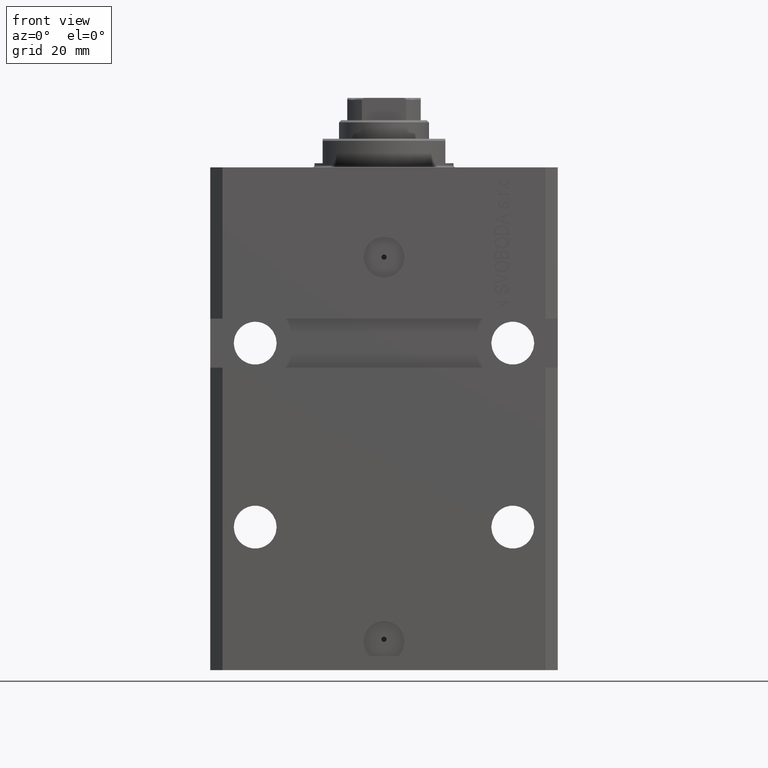
[diagram: clean part render]
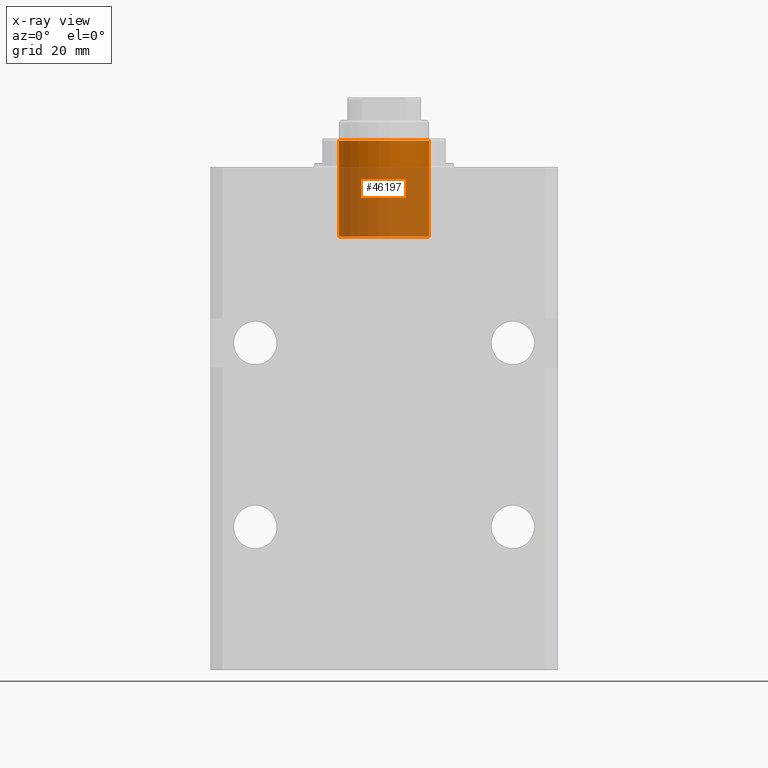
[diagram: x-ray — body ghosted, one internal face saturated and labeled with its STEP entity id]
A machine part, front view, then the same camera in x-ray: the body is ghosted and one INTERNAL B-rep face — a face not visible from any outside direction — is saturated and labeled: STEP entity #46197.
In plain terms, the highlighted cylindrical surface (partial cylindrical patch) has radius 11 mm, axis along (0, -0, 1).
Its self-contained STEP definition (entity closure, byte-faithful):
#448 = CARTESIAN_POINT ( 'NONE',  ( 0.000000000000000000, 0.000000000000000000, 17.00000000000000000 ) ) ;
#3566 = LINE ( 'NONE', #48332, #41298 ) ;
#4382 = FACE_OUTER_BOUND ( 'NONE', #35126, .T. ) ;
#5729 = CARTESIAN_POINT ( 'NONE',  ( 11.00000000000000000, 1.347111479062088405E-15, 17.00000000000000000 ) ) ;
#6456 = EDGE_CURVE ( 'NONE', #14594, #19586, #27695, .T. ) ;
#7753 = ORIENTED_EDGE ( 'NONE', *, *, #40877, .T. ) ;
#11769 = DIRECTION ( 'NONE',  ( -0.000000000000000000, -0.000000000000000000, -1.000000000000000000 ) ) ;
#12356 = AXIS2_PLACEMENT_3D ( 'NONE', #18454, #26540, #44990 ) ;
#12686 = DIRECTION ( 'NONE',  ( -1.000000000000000000, 0.000000000000000000, 0.000000000000000000 ) ) ;
#13741 = AXIS2_PLACEMENT_3D ( 'NONE', #448, #11769, #34385 ) ;
#13908 = DIRECTION ( 'NONE',  ( -0.000000000000000000, -0.000000000000000000, -1.000000000000000000 ) ) ;
#14594 = VERTEX_POINT ( 'NONE', #25010 ) ;
#15466 = CIRCLE ( 'NONE', #12356, 11.00000000000000000 ) ;
#16722 = CARTESIAN_POINT ( 'NONE',  ( -11.00000000000000000, 0.000000000000000000, -6.499999999999992006 ) ) ;
#18454 = CARTESIAN_POINT ( 'NONE',  ( 0.000000000000000000, 0.000000000000000000, 17.00000000000000000 ) ) ;
#19586 = VERTEX_POINT ( 'NONE', #16722 ) ;
#21419 = CARTESIAN_POINT ( 'NONE',  ( -11.00000000000000000, 0.000000000000000000, 17.00000000000000000 ) ) ;
#24536 = ORIENTED_EDGE ( 'NONE', *, *, #6456, .T. ) ;
#25010 = CARTESIAN_POINT ( 'NONE',  ( 11.00000000000000000, 1.347111479062088405E-15, -6.499999999999992006 ) ) ;
#26045 = CARTESIAN_POINT ( 'NONE',  ( 11.00000000000000000, 1.347111479062088405E-15, 17.00000000000000000 ) ) ;
#26540 = DIRECTION ( 'NONE',  ( 0.000000000000000000, 0.000000000000000000, -1.000000000000000000 ) ) ;
#27695 = CIRCLE ( 'NONE', #34798, 11.00000000000000000 ) ;
#29934 = CARTESIAN_POINT ( 'NONE',  ( 0.000000000000000000, 0.000000000000000000, -6.499999999999992006 ) ) ;
#32107 = DIRECTION ( 'NONE',  ( 0.000000000000000000, 0.000000000000000000, -1.000000000000000000 ) ) ;
#32514 = VERTEX_POINT ( 'NONE', #21419 ) ;
#32853 = ORIENTED_EDGE ( 'NONE', *, *, #38883, .F. ) ;
#34138 = CYLINDRICAL_SURFACE ( 'NONE', #13741, 11.00000000000000000 ) ;
#34270 = VECTOR ( 'NONE', #40393, 1000.000000000000000 ) ;
#34385 = DIRECTION ( 'NONE',  ( -1.000000000000000000, 0.000000000000000000, 0.000000000000000000 ) ) ;
#34798 = AXIS2_PLACEMENT_3D ( 'NONE', #29934, #32107, #12686 ) ;
#35126 = EDGE_LOOP ( 'NONE', ( #32853, #7753, #24536, #48393 ) ) ;
#38883 = EDGE_CURVE ( 'NONE', #46990, #32514, #15466, .T. ) ;
#39657 = LINE ( 'NONE', #5729, #34270 ) ;
#40393 = DIRECTION ( 'NONE',  ( -0.000000000000000000, -0.000000000000000000, -1.000000000000000000 ) ) ;
#40877 = EDGE_CURVE ( 'NONE', #46990, #14594, #39657, .T. ) ;
#41298 = VECTOR ( 'NONE', #13908, 1000.000000000000000 ) ;
#44990 = DIRECTION ( 'NONE',  ( -1.000000000000000000, 0.000000000000000000, 0.000000000000000000 ) ) ;
#46197 = ADVANCED_FACE ( 'NONE', ( #4382 ), #34138, .F. ) ;
#46990 = VERTEX_POINT ( 'NONE', #26045 ) ;
#48104 = EDGE_CURVE ( 'NONE', #32514, #19586, #3566, .T. ) ;
#48332 = CARTESIAN_POINT ( 'NONE',  ( -11.00000000000000000, 0.000000000000000000, 17.00000000000000000 ) ) ;
#48393 = ORIENTED_EDGE ( 'NONE', *, *, #48104, .F. ) ;